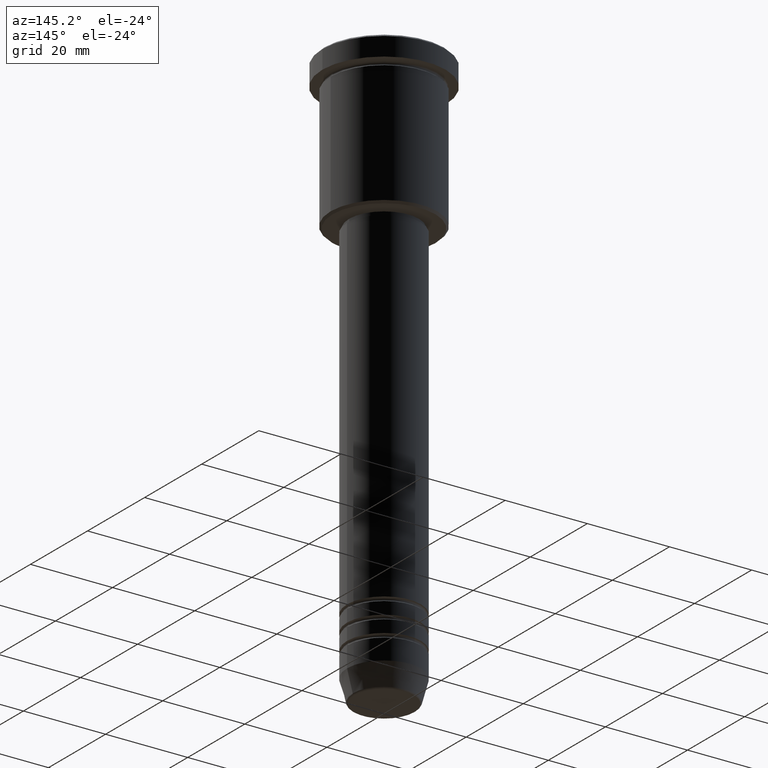
[diagram: clean part render]
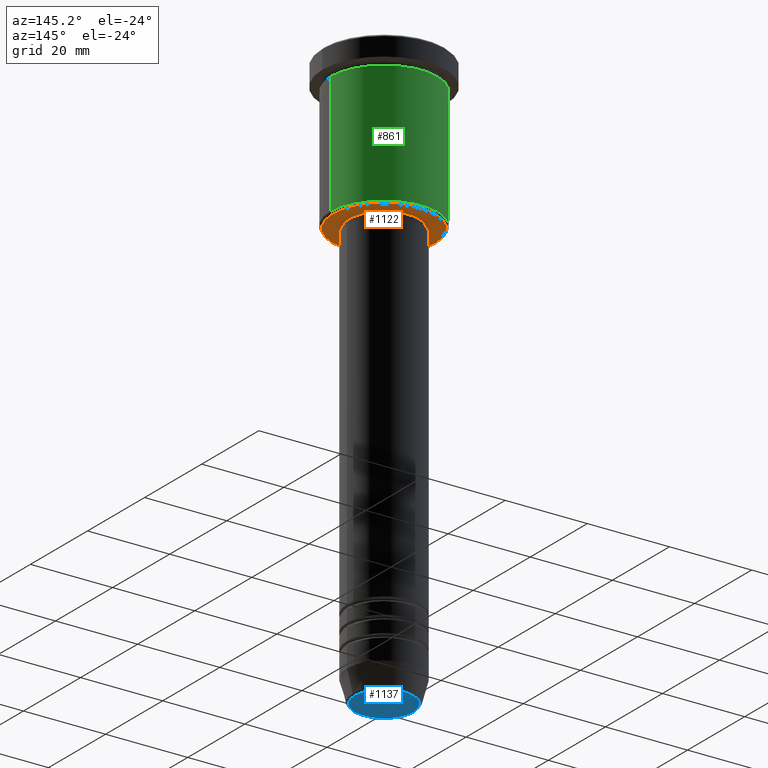
[diagram: same view with three faces highlighted in distinct colors, each labeled with its STEP entity id]
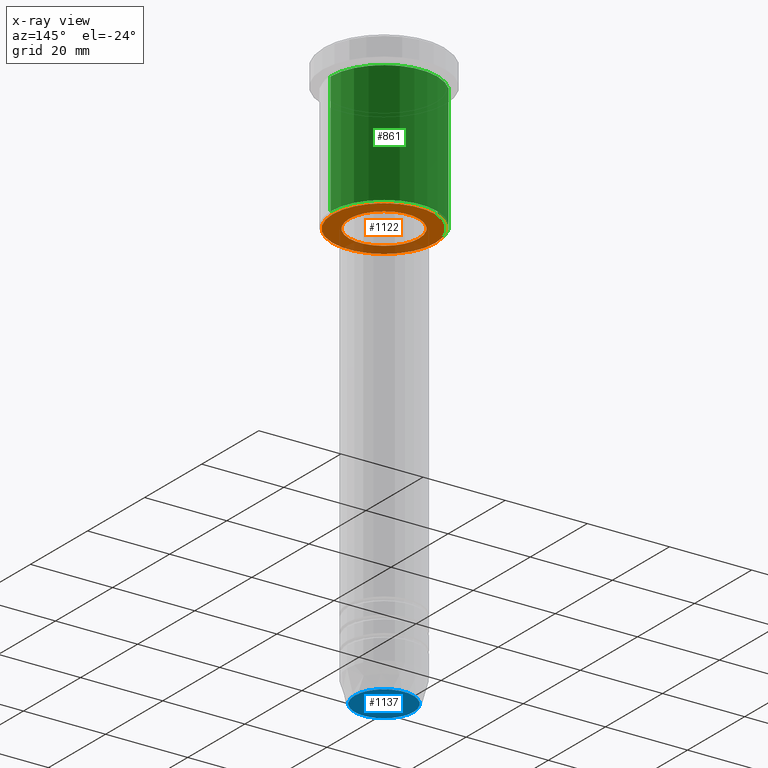
[diagram: x-ray of the same camera — body ghosted, the three highlighted faces saturated]
A machine part, auxiliary view with three faces highlighted in distinct colors.
The next image is the same camera in x-ray (body ghosted, the three faces saturated) — at least one of them is partly hidden behind the body in this view.
Their STEP definitions:

[orange] entity #1122 — the highlighted planar face has unit normal (0, 0, -1).
#14 = CARTESIAN_POINT ( 'NONE',  ( 0.000000000000000000, 0.000000000000000000, -36.00000000000000711 ) ) ;
#118 = ORIENTED_EDGE ( 'NONE', *, *, #197, .T. ) ;
#124 = CARTESIAN_POINT ( 'NONE',  ( -12.49999999999999645, 1.561424668912875308E-15, -36.00000000000000711 ) ) ;
#133 = CARTESIAN_POINT ( 'NONE',  ( 12.49999999999999645, 0.000000000000000000, -36.00000000000000711 ) ) ;
#148 = EDGE_CURVE ( 'NONE', #1145, #173, #175, .T. ) ;
#150 = CARTESIAN_POINT ( 'NONE',  ( 0.000000000000000000, 0.000000000000000000, -36.00000000000001421 ) ) ;
#173 = VERTEX_POINT ( 'NONE', #133 ) ;
#175 = CIRCLE ( 'NONE', #865, 12.49999999999999645 ) ;
#197 = EDGE_CURVE ( 'NONE', #885, #859, #904, .T. ) ;
#198 = DIRECTION ( 'NONE',  ( 0.000000000000000000, 0.000000000000000000, -1.000000000000000000 ) ) ;
#234 = DIRECTION ( 'NONE',  ( 1.000000000000000000, 0.000000000000000000, 0.000000000000000000 ) ) ;
#347 = ORIENTED_EDGE ( 'NONE', *, *, #551, .T. ) ;
#366 = ORIENTED_EDGE ( 'NONE', *, *, #148, .T. ) ;
#394 = CARTESIAN_POINT ( 'NONE',  ( 0.000000000000000000, 0.000000000000000000, -36.00000000000001421 ) ) ;
#401 = CIRCLE ( 'NONE', #1040, 12.49999999999999645 ) ;
#425 = CARTESIAN_POINT ( 'NONE',  ( 8.500000000000000000, 0.000000000000000000, -36.00000000000001421 ) ) ;
#441 = EDGE_LOOP ( 'NONE', ( #1014, #118 ) ) ;
#465 = CARTESIAN_POINT ( 'NONE',  ( 0.000000000000000000, 0.000000000000000000, -36.00000000000000711 ) ) ;
#548 = DIRECTION ( 'NONE',  ( 0.000000000000000000, 0.000000000000000000, -1.000000000000000000 ) ) ;
#551 = EDGE_CURVE ( 'NONE', #173, #1145, #401, .T. ) ;
#580 = PLANE ( 'NONE',  #1178 ) ;
#739 = CARTESIAN_POINT ( 'NONE',  ( -8.500000000000000000, 1.040949779275250140E-15, -36.00000000000001421 ) ) ;
#778 = FACE_BOUND ( 'NONE', #441, .T. ) ;
#795 = CIRCLE ( 'NONE', #946, 8.500000000000000000 ) ;
#842 = DIRECTION ( 'NONE',  ( -1.000000000000000000, 0.000000000000000000, 0.000000000000000000 ) ) ;
#859 = VERTEX_POINT ( 'NONE', #425 ) ;
#864 = DIRECTION ( 'NONE',  ( -0.000000000000000000, -0.000000000000000000, 1.000000000000000000 ) ) ;
#865 = AXIS2_PLACEMENT_3D ( 'NONE', #14, #548, #1105 ) ;
#868 = FACE_OUTER_BOUND ( 'NONE', #1111, .T. ) ;
#885 = VERTEX_POINT ( 'NONE', #739 ) ;
#893 = DIRECTION ( 'NONE',  ( -0.000000000000000000, -0.000000000000000000, 1.000000000000000000 ) ) ;
#904 = CIRCLE ( 'NONE', #1039, 8.500000000000000000 ) ;
#946 = AXIS2_PLACEMENT_3D ( 'NONE', #150, #893, #977 ) ;
#947 = DIRECTION ( 'NONE',  ( 0.000000000000000000, 0.000000000000000000, -1.000000000000000000 ) ) ;
#977 = DIRECTION ( 'NONE',  ( 1.000000000000000000, 0.000000000000000000, 0.000000000000000000 ) ) ;
#1014 = ORIENTED_EDGE ( 'NONE', *, *, #1162, .T. ) ;
#1029 = DIRECTION ( 'NONE',  ( -1.000000000000000000, 0.000000000000000000, -0.000000000000000000 ) ) ;
#1039 = AXIS2_PLACEMENT_3D ( 'NONE', #394, #864, #234 ) ;
#1040 = AXIS2_PLACEMENT_3D ( 'NONE', #465, #198, #842 ) ;
#1055 = CARTESIAN_POINT ( 'NONE',  ( 0.000000000000000000, 13.00000000000000000, -36.00000000000000711 ) ) ;
#1105 = DIRECTION ( 'NONE',  ( -1.000000000000000000, 0.000000000000000000, 0.000000000000000000 ) ) ;
#1111 = EDGE_LOOP ( 'NONE', ( #347, #366 ) ) ;
#1122 = ADVANCED_FACE ( 'NONE', ( #868, #778 ), #580, .T. ) ;
#1145 = VERTEX_POINT ( 'NONE', #124 ) ;
#1162 = EDGE_CURVE ( 'NONE', #859, #885, #795, .T. ) ;
#1178 = AXIS2_PLACEMENT_3D ( 'NONE', #1055, #947, #1029 ) ;

[blue] entity #1137 — the highlighted planar face has unit normal (0, -0, 1).
#38 = ORIENTED_EDGE ( 'NONE', *, *, #843, .T. ) ;
#61 = DIRECTION ( 'NONE',  ( 1.000000000000000000, 0.000000000000000000, 0.000000000000000000 ) ) ;
#119 = AXIS2_PLACEMENT_3D ( 'NONE', #880, #976, #127 ) ;
#127 = DIRECTION ( 'NONE',  ( 1.000000000000000000, 0.000000000000000000, 0.000000000000000000 ) ) ;
#167 = EDGE_CURVE ( 'NONE', #982, #296, #612, .T. ) ;
#181 = CARTESIAN_POINT ( 'NONE',  ( 7.142615947639344043, 0.000000000000000000, -140.0000000000000000 ) ) ;
#293 = PLANE ( 'NONE',  #1064 ) ;
#296 = VERTEX_POINT ( 'NONE', #181 ) ;
#297 = CARTESIAN_POINT ( 'NONE',  ( 0.000000000000000000, 0.000000000000000000, -140.0000000000000000 ) ) ;
#298 = EDGE_LOOP ( 'NONE', ( #38, #569 ) ) ;
#307 = CIRCLE ( 'NONE', #984, 7.142615947639344043 ) ;
#412 = DIRECTION ( 'NONE',  ( 1.000000000000000000, 0.000000000000000000, 0.000000000000000000 ) ) ;
#483 = FACE_OUTER_BOUND ( 'NONE', #298, .T. ) ;
#569 = ORIENTED_EDGE ( 'NONE', *, *, #167, .T. ) ;
#612 = CIRCLE ( 'NONE', #119, 7.142615947639344043 ) ;
#658 = DIRECTION ( 'NONE',  ( 0.000000000000000000, -0.000000000000000000, 1.000000000000000000 ) ) ;
#818 = CARTESIAN_POINT ( 'NONE',  ( -7.142615947639344043, 9.042911250660033433E-16, -140.0000000000000000 ) ) ;
#843 = EDGE_CURVE ( 'NONE', #296, #982, #307, .T. ) ;
#880 = CARTESIAN_POINT ( 'NONE',  ( 0.000000000000000000, 0.000000000000000000, -140.0000000000000000 ) ) ;
#887 = DIRECTION ( 'NONE',  ( 0.000000000000000000, 0.000000000000000000, -1.000000000000000000 ) ) ;
#903 = CARTESIAN_POINT ( 'NONE',  ( 0.000000000000000000, 0.000000000000000000, -140.0000000000000000 ) ) ;
#976 = DIRECTION ( 'NONE',  ( 0.000000000000000000, 0.000000000000000000, -1.000000000000000000 ) ) ;
#982 = VERTEX_POINT ( 'NONE', #818 ) ;
#984 = AXIS2_PLACEMENT_3D ( 'NONE', #903, #887, #61 ) ;
#1064 = AXIS2_PLACEMENT_3D ( 'NONE', #297, #658, #412 ) ;
#1137 = ADVANCED_FACE ( 'NONE', ( #483 ), #293, .F. ) ;

[green] entity #861 — the highlighted cylindrical surface (partial cylindrical patch) has radius 13 mm, axis along (-0, -0, 1).
#3 = LINE ( 'NONE', #1104, #140 ) ;
#10 = CARTESIAN_POINT ( 'NONE',  ( -13.00000000000000178, 1.592040838891559293E-15, -35.50000000000000000 ) ) ;
#78 = CARTESIAN_POINT ( 'NONE',  ( 13.00000000000000178, 0.000000000000000000, -5.999999999999999112 ) ) ;
#113 = CARTESIAN_POINT ( 'NONE',  ( 0.000000000000000000, 0.000000000000000000, -35.50000000000000000 ) ) ;
#140 = VECTOR ( 'NONE', #275, 1000.000000000000000 ) ;
#152 = LINE ( 'NONE', #798, #693 ) ;
#224 = VERTEX_POINT ( 'NONE', #1151 ) ;
#244 = DIRECTION ( 'NONE',  ( 1.000000000000000000, 0.000000000000000000, 0.000000000000000000 ) ) ;
#273 = VERTEX_POINT ( 'NONE', #78 ) ;
#275 = DIRECTION ( 'NONE',  ( -0.000000000000000000, -0.000000000000000000, 1.000000000000000000 ) ) ;
#365 = EDGE_CURVE ( 'NONE', #273, #631, #751, .T. ) ;
#437 = EDGE_CURVE ( 'NONE', #224, #273, #3, .T. ) ;
#527 = EDGE_CURVE ( 'NONE', #224, #545, #769, .T. ) ;
#545 = VERTEX_POINT ( 'NONE', #10 ) ;
#596 = AXIS2_PLACEMENT_3D ( 'NONE', #113, #1017, #917 ) ;
#601 = FACE_OUTER_BOUND ( 'NONE', #991, .T. ) ;
#615 = AXIS2_PLACEMENT_3D ( 'NONE', #806, #1177, #975 ) ;
#624 = CYLINDRICAL_SURFACE ( 'NONE', #615, 13.00000000000000178 ) ;
#628 = DIRECTION ( 'NONE',  ( -0.000000000000000000, -0.000000000000000000, 1.000000000000000000 ) ) ;
#631 = VERTEX_POINT ( 'NONE', #969 ) ;
#693 = VECTOR ( 'NONE', #983, 1000.000000000000000 ) ;
#717 = CARTESIAN_POINT ( 'NONE',  ( 0.000000000000000000, 0.000000000000000000, -5.999999999999999112 ) ) ;
#751 = CIRCLE ( 'NONE', #828, 13.00000000000000178 ) ;
#769 = CIRCLE ( 'NONE', #596, 13.00000000000000178 ) ;
#798 = CARTESIAN_POINT ( 'NONE',  ( -13.00000000000000178, 1.592040838891559293E-15, 0.000000000000000000 ) ) ;
#804 = EDGE_CURVE ( 'NONE', #545, #631, #152, .T. ) ;
#806 = CARTESIAN_POINT ( 'NONE',  ( 0.000000000000000000, 0.000000000000000000, 0.000000000000000000 ) ) ;
#828 = AXIS2_PLACEMENT_3D ( 'NONE', #717, #628, #244 ) ;
#861 = ADVANCED_FACE ( 'NONE', ( #601 ), #624, .T. ) ;
#862 = ORIENTED_EDGE ( 'NONE', *, *, #365, .F. ) ;
#902 = ORIENTED_EDGE ( 'NONE', *, *, #437, .F. ) ;
#917 = DIRECTION ( 'NONE',  ( -1.000000000000000000, 0.000000000000000000, 0.000000000000000000 ) ) ;
#952 = ORIENTED_EDGE ( 'NONE', *, *, #527, .T. ) ;
#969 = CARTESIAN_POINT ( 'NONE',  ( -13.00000000000000178, 1.592040838891559293E-15, -5.999999999999999112 ) ) ;
#975 = DIRECTION ( 'NONE',  ( 1.000000000000000000, 0.000000000000000000, 0.000000000000000000 ) ) ;
#983 = DIRECTION ( 'NONE',  ( -0.000000000000000000, -0.000000000000000000, 1.000000000000000000 ) ) ;
#991 = EDGE_LOOP ( 'NONE', ( #952, #1008, #862, #902 ) ) ;
#1008 = ORIENTED_EDGE ( 'NONE', *, *, #804, .T. ) ;
#1017 = DIRECTION ( 'NONE',  ( -0.000000000000000000, -0.000000000000000000, 1.000000000000000000 ) ) ;
#1104 = CARTESIAN_POINT ( 'NONE',  ( 13.00000000000000178, 0.000000000000000000, 0.000000000000000000 ) ) ;
#1151 = CARTESIAN_POINT ( 'NONE',  ( 13.00000000000000178, 0.000000000000000000, -35.50000000000000000 ) ) ;
#1177 = DIRECTION ( 'NONE',  ( -0.000000000000000000, -0.000000000000000000, 1.000000000000000000 ) ) ;